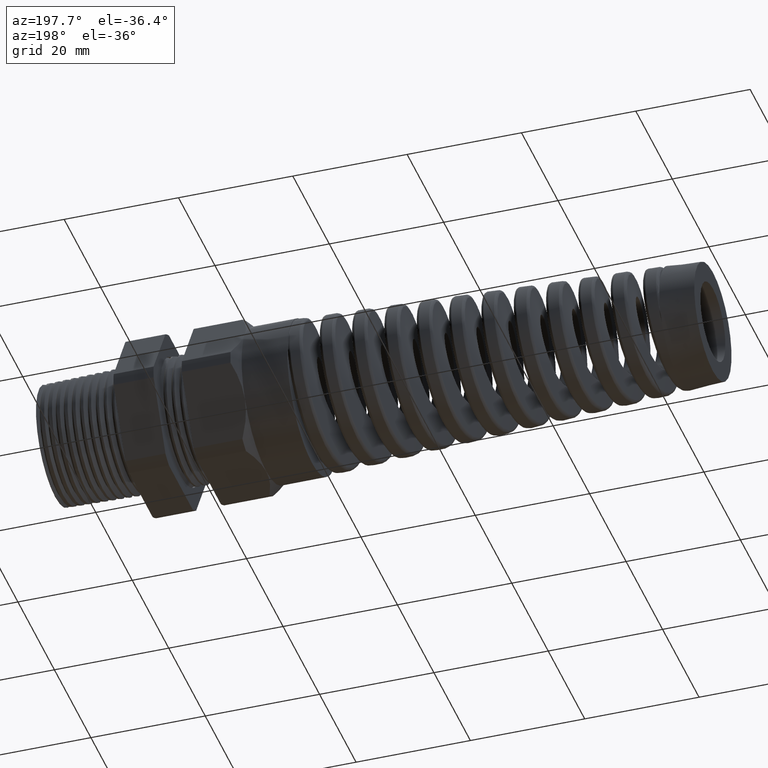
[diagram: clean part render]
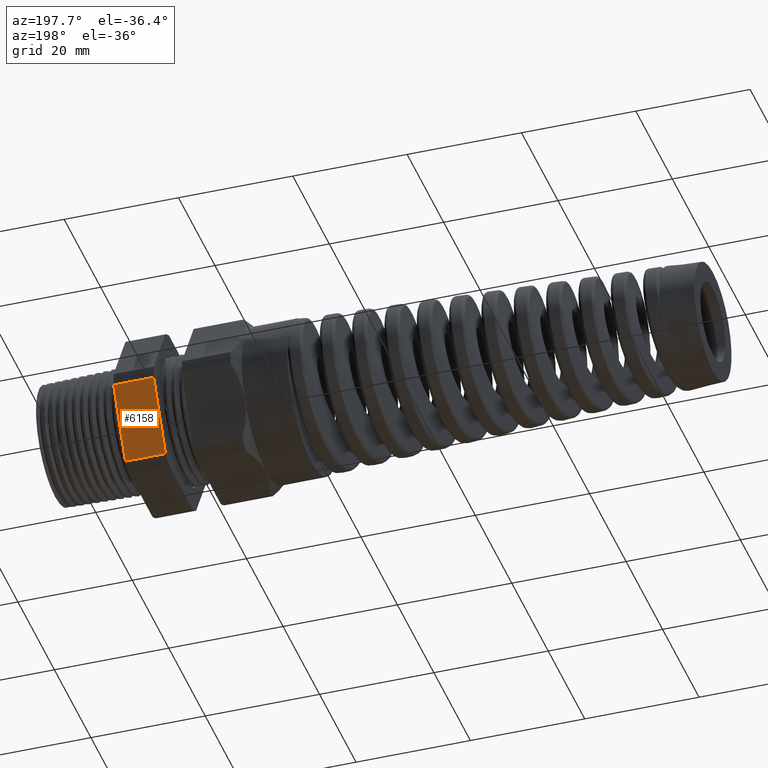
[diagram: same view with one face highlighted and labeled with its STEP entity id]
A machine part, auxiliary view. The second image highlights one B-rep face of the part: STEP entity #6158.
In plain terms, the highlighted planar face has unit normal (0, 0.866, -0.5).
Its self-contained STEP definition (entity closure, byte-faithful):
#1204 = CARTESIAN_POINT ( 'NONE',  ( -0.5855905511811022600, 0.3313250556190262000, -0.4861281698472627600 ) ) ;
#1205 = DIRECTION ( 'NONE',  ( 0.0000000000000000000, -0.4999999999999997200, -0.8660254037844388200 ) ) ;
#1206 = VECTOR ( 'NONE', #1205, 39.37007874015748100 ) ;
#1207 = CARTESIAN_POINT ( 'NONE',  ( -0.5855905511811022600, 0.7239934640057523700, 0.1939934640057524300 ) ) ;
#1208 = LINE ( 'NONE', #1207, #1206 ) ;
#1209 = CARTESIAN_POINT ( 'NONE',  ( -0.5855905511811022600, 0.5866618723924791300, -0.04387183015273695600 ) ) ;
#1284 = CARTESIAN_POINT ( 'NONE',  ( 0.2800000000000000300, 0.5866618723924791300, -0.04387183015273695600 ) ) ;
#1285 = AXIS2_PLACEMENT_3D ( 'NONE', #1284, #1356, #1355 ) ;
#1286 = PLANE ( 'NONE',  #1285 ) ;
#1287 = FACE_OUTER_BOUND ( 'NONE', #6159, .T. ) ;
#1288 = DIRECTION ( 'NONE',  ( -1.000000000000000000, 0.0000000000000000000, 0.0000000000000000000 ) ) ;
#1289 = VECTOR ( 'NONE', #1288, 39.37007874015748100 ) ;
#1290 = CARTESIAN_POINT ( 'NONE',  ( 0.2800000000000000300, 0.3313250556190262000, -0.4861281698472628700 ) ) ;
#1294 = LINE ( 'NONE', #1290, #1289 ) ;
#1355 = DIRECTION ( 'NONE',  ( 0.0000000000000000000, 0.4999999999999997200, 0.8660254037844388200 ) ) ;
#1356 = DIRECTION ( 'NONE',  ( 0.0000000000000000000, 0.8660254037844388200, -0.4999999999999997200 ) ) ;
#6072 = EDGE_CURVE ( 'NONE', #10351, #6095, #13602, .T. ) ;
#6095 = VERTEX_POINT ( 'NONE', #1209 ) ;
#6097 = EDGE_CURVE ( 'NONE', #6095, #6098, #1208, .T. ) ;
#6098 = VERTEX_POINT ( 'NONE', #1204 ) ;
#6156 = EDGE_CURVE ( 'NONE', #10348, #6098, #1294, .T. ) ;
#6158 = ADVANCED_FACE ( 'NONE', ( #1287 ), #1286, .T. ) ;
#6159 = EDGE_LOOP ( 'NONE', ( #6160, #6161, #6215, #6216 ) ) ;
#6160 = ORIENTED_EDGE ( 'NONE', *, *, #6156, .T. ) ;
#6161 = ORIENTED_EDGE ( 'NONE', *, *, #6097, .F. ) ;
#6215 = ORIENTED_EDGE ( 'NONE', *, *, #6072, .F. ) ;
#6216 = ORIENTED_EDGE ( 'NONE', *, *, #10357, .F. ) ;
#10348 = VERTEX_POINT ( 'NONE', #17489 ) ;
#10351 = VERTEX_POINT ( 'NONE', #17484 ) ;
#10357 = EDGE_CURVE ( 'NONE', #10348, #10351, #17477, .T. ) ;
#12788 = DIRECTION ( 'NONE',  ( -1.000000000000000000, 0.0000000000000000000, 0.0000000000000000000 ) ) ;
#13595 = VECTOR ( 'NONE', #12788, 39.37007874015748100 ) ;
#13596 = CARTESIAN_POINT ( 'NONE',  ( 0.2800000000000000300, 0.5866618723924791300, -0.04387183015273695600 ) ) ;
#13602 = LINE ( 'NONE', #13596, #13595 ) ;
#17474 = DIRECTION ( 'NONE',  ( 0.0000000000000000000, 0.4999999999999997200, 0.8660254037844388200 ) ) ;
#17475 = VECTOR ( 'NONE', #17474, 39.37007874015748100 ) ;
#17476 = CARTESIAN_POINT ( 'NONE',  ( -0.3100000000000000000, 0.7239934640057523700, 0.1939934640057524300 ) ) ;
#17477 = LINE ( 'NONE', #17476, #17475 ) ;
#17484 = CARTESIAN_POINT ( 'NONE',  ( -0.3100000000000000000, 0.5866618723924791300, -0.04387183015273695600 ) ) ;
#17489 = CARTESIAN_POINT ( 'NONE',  ( -0.3100000000000000000, 0.3313250556190262000, -0.4861281698472628700 ) ) ;